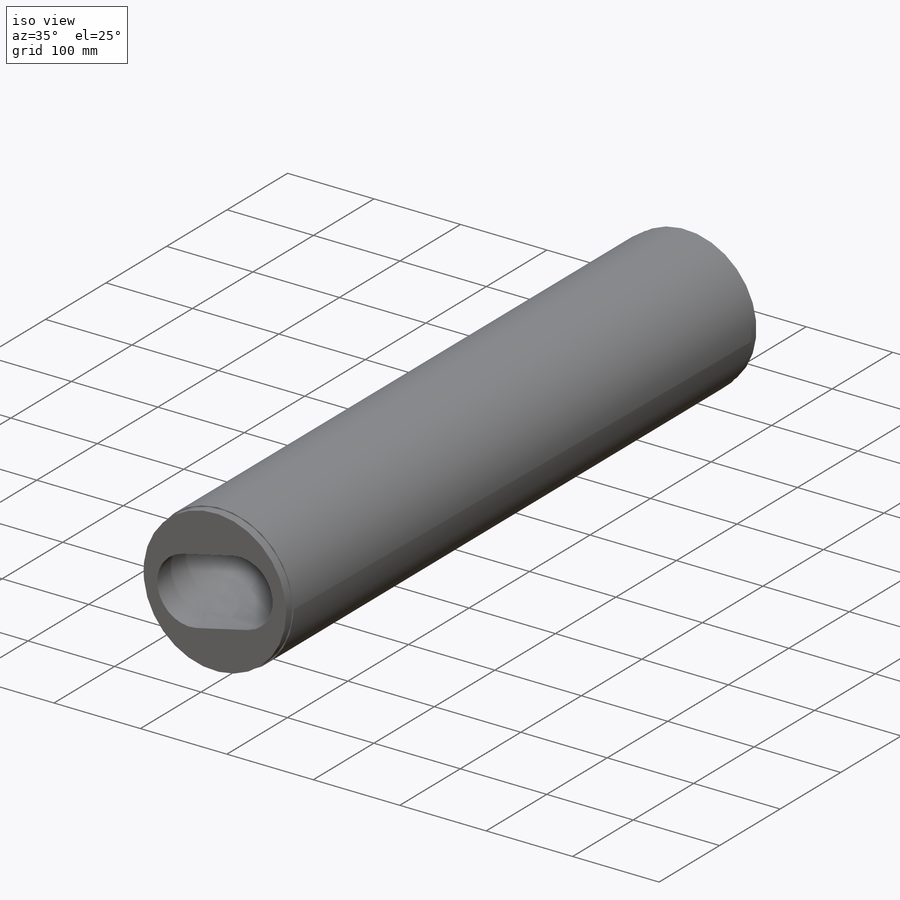
[diagram: iso view]
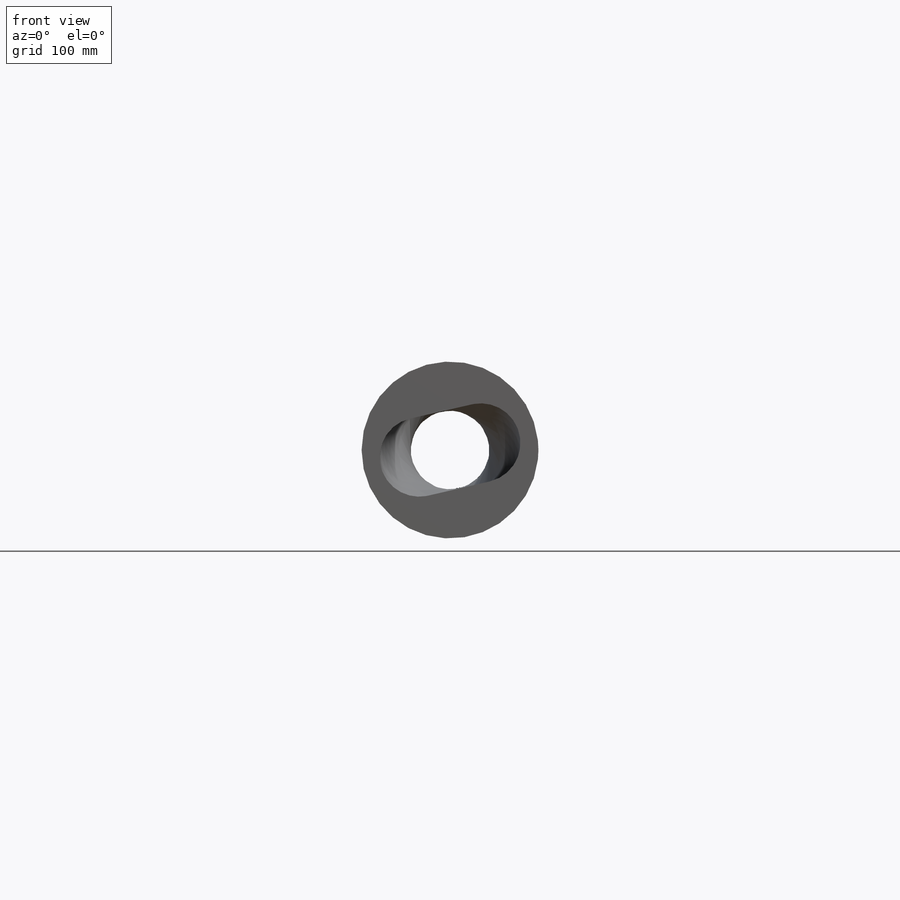
[diagram: front view]
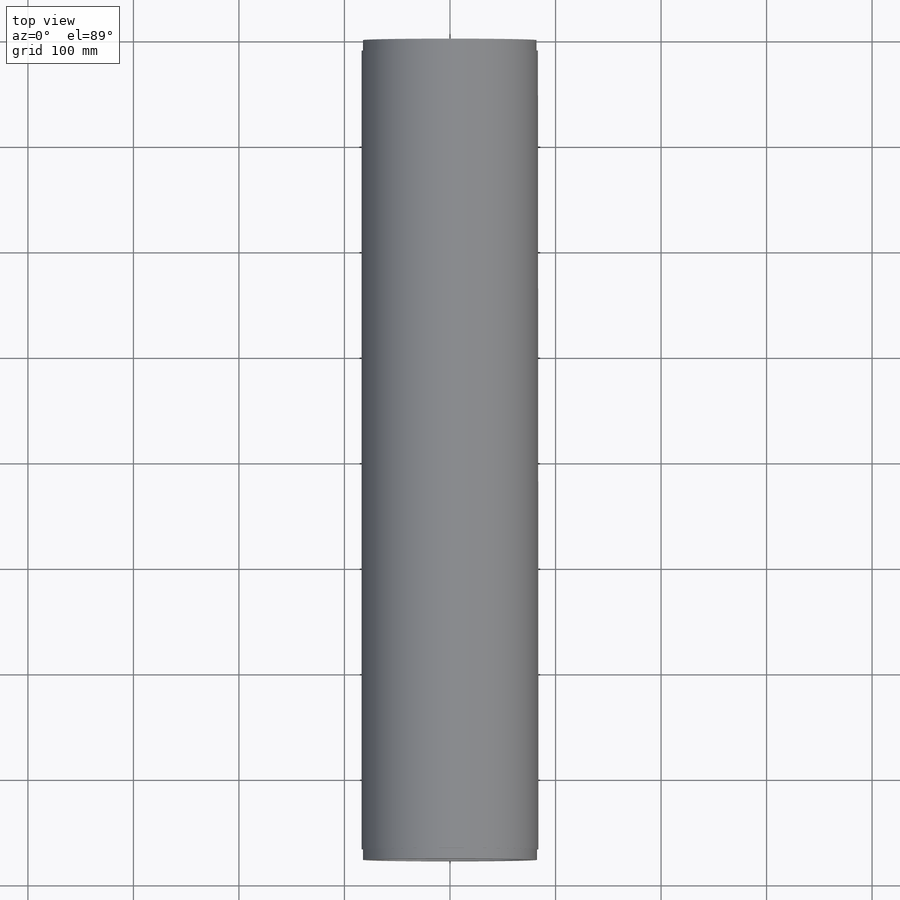
[diagram: top view]
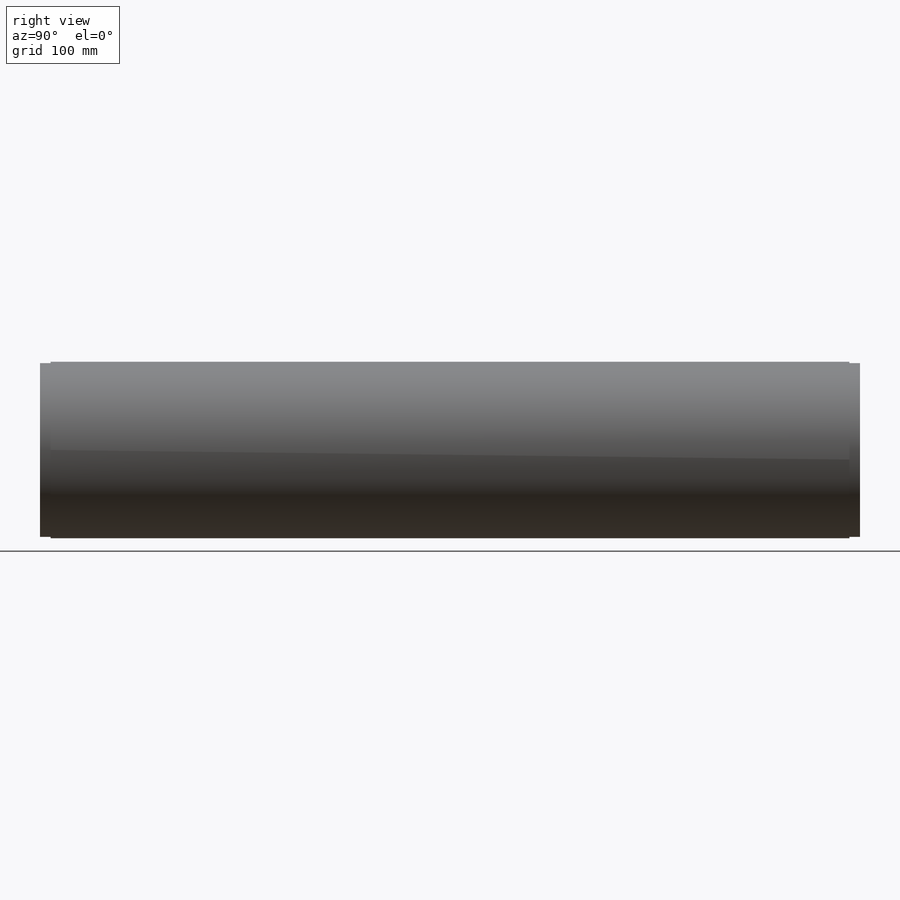
[diagram: right view]
SOLIDWORKS PART (.sldprt)
format: sldprt  version: not decoded by parser v0  size: 294,400 bytes
history: native  units: mm
features: sketch x5, extrude x2, material x1, helix x1, sweep x1, boolean_combine x1, plane x1, cut_extrude x1, mirror x1 (+13 scaffold rows collapsed)
feature tree (27):
  scaffold x13  (default folders/planes/origin — collapsed)
  material  "Material <not specified>"
  sketch  "Sketch1"  dims[D1=75.0mm D2=135.0mm]
  sketch  "Sketch2"
  helix  "Helix/Spiral1"  Pitch=780mm
  sweep  "Sweep1"
  sketch  "Sketch3"  dims[D1=155.0mm]
  extrude  "Boss-Extrude1"  Depth=777mm
  boolean_combine  "Combine1"
  sketch  "Sketch4"  dims[D1=167.6mm]
  extrude  "Boss-Extrude2"  [1 undecoded]
  plane  "Plane1"  Offset=388.5mm
  sketch  "Sketch5"  dims[D1=165.0mm]
  cut_extrude  "Cut-Extrude1"  Depth=10mm
  mirror  "Mirror1"
decode coverage: 7 of 12 modeling features carry decoded parameters
note: 1 parameter value undecoded
note: suppression state not decoded; provenance and decode notes live in map.json
